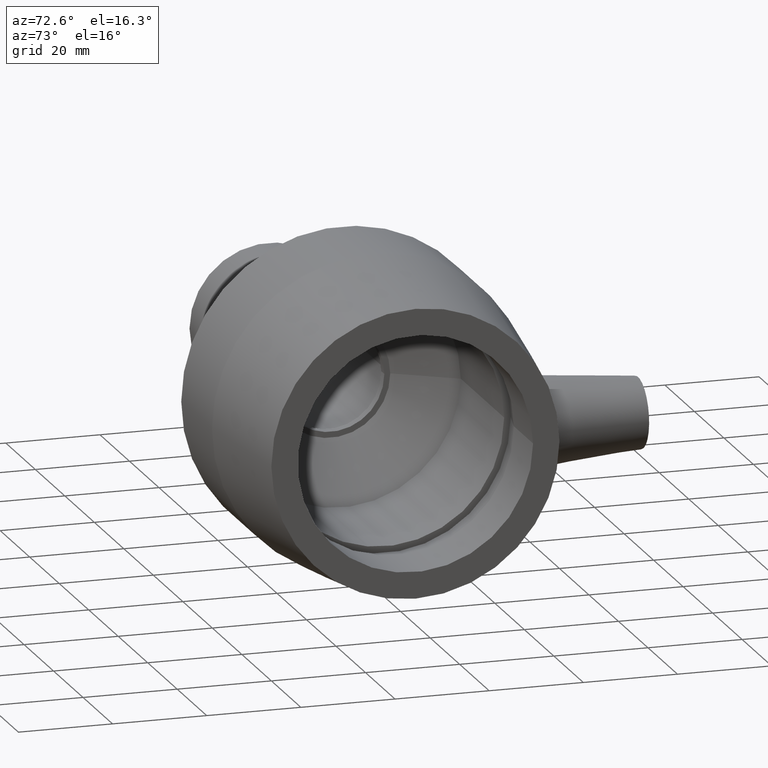
[diagram: clean part render]
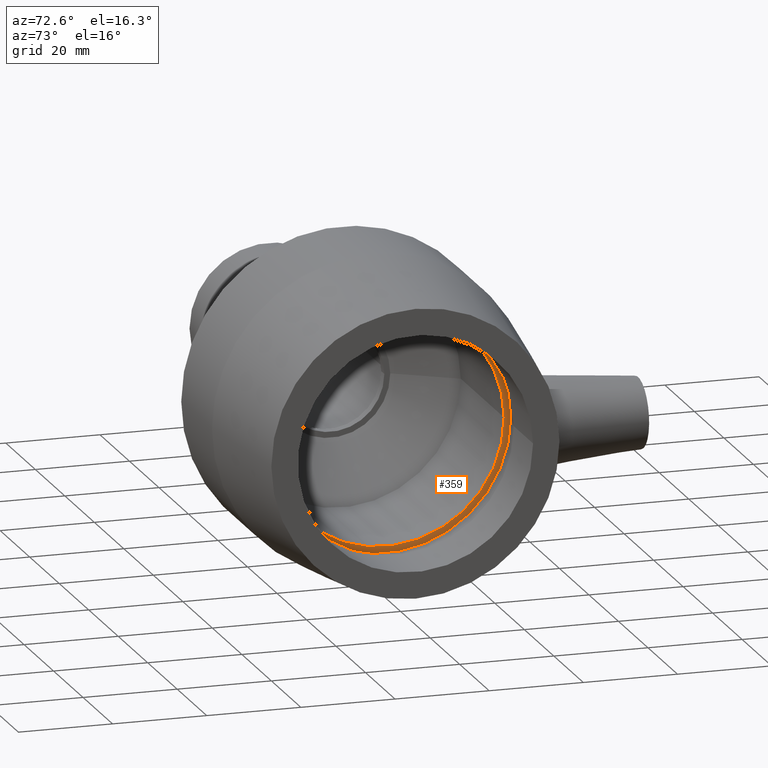
[diagram: same view with one face highlighted and labeled with its STEP entity id]
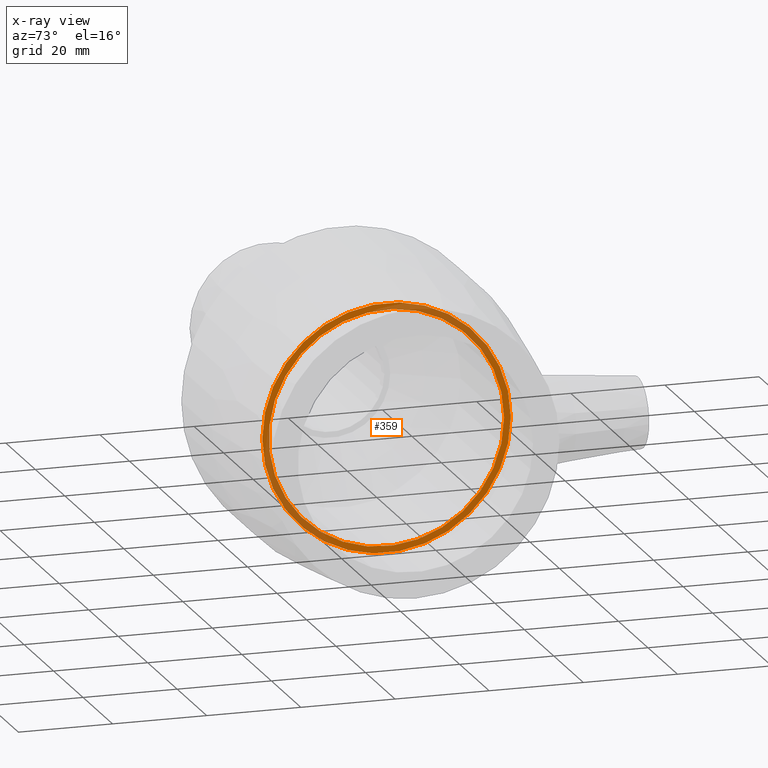
[diagram: x-ray of the same camera — body ghosted, the highlighted face saturated]
A machine part, auxiliary view. The second image highlights one B-rep face of the part: STEP entity #359.
The next image is the same camera in x-ray: the body ghosted, the highlighted face saturated — about 32% of this face is hidden behind the body in this view.
In plain terms, the highlighted planar face has unit normal (1, 0, 0).
Its self-contained STEP definition (entity closure, byte-faithful):
#46=FACE_BOUND('',#140,.T.);
#89=FACE_OUTER_BOUND('',#139,.T.);
#139=EDGE_LOOP('',(#301));
#140=EDGE_LOOP('',(#302));
#181=CIRCLE('',#411,26.3887028695775);
#182=CIRCLE('',#413,25.);
#213=VERTEX_POINT('',#704);
#214=VERTEX_POINT('',#707);
#247=EDGE_CURVE('',#213,#213,#181,.T.);
#248=EDGE_CURVE('',#214,#214,#182,.T.);
#301=ORIENTED_EDGE('',*,*,#247,.T.);
#302=ORIENTED_EDGE('',*,*,#248,.F.);
#334=PLANE('',#412);
#359=ADVANCED_FACE('',(#89,#46),#334,.T.);
#411=AXIS2_PLACEMENT_3D('',#705,#513,#514);
#412=AXIS2_PLACEMENT_3D('',#706,#515,#516);
#413=AXIS2_PLACEMENT_3D('',#708,#517,#518);
#513=DIRECTION('center_axis',(1.,1.83697019872103E-16,0.));
#514=DIRECTION('ref_axis',(0.,0.,-1.));
#515=DIRECTION('center_axis',(1.,1.83697019872103E-16,0.));
#516=DIRECTION('ref_axis',(0.,0.,-1.));
#517=DIRECTION('center_axis',(1.,1.83697019872103E-16,0.));
#518=DIRECTION('ref_axis',(0.,0.,-1.));
#704=CARTESIAN_POINT('',(30.4,26.3887028695775,0.));
#705=CARTESIAN_POINT('Origin',(30.4,1.47692403977171E-14,0.));
#706=CARTESIAN_POINT('Origin',(30.4,25.,0.));
#707=CARTESIAN_POINT('',(30.4,25.,0.));
#708=CARTESIAN_POINT('Origin',(30.4,1.47692403977171E-14,0.));